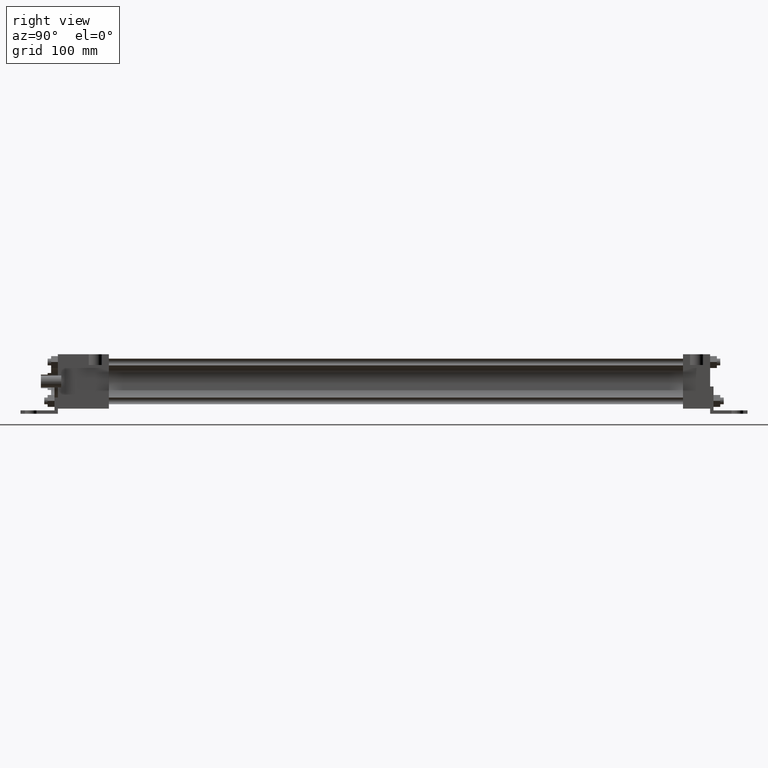
[diagram: clean part render]
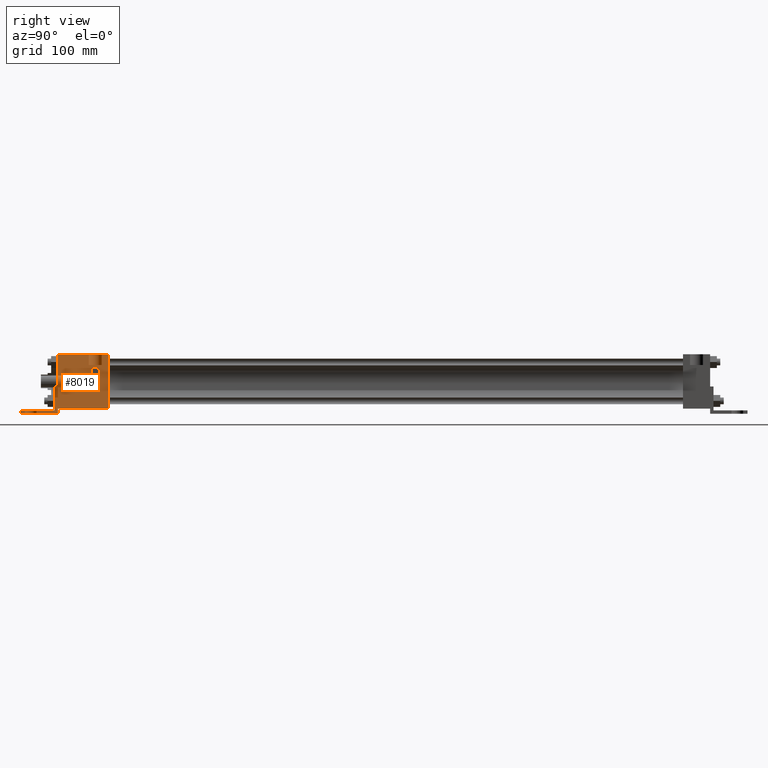
[diagram: same view with one face highlighted and labeled with its STEP entity id]
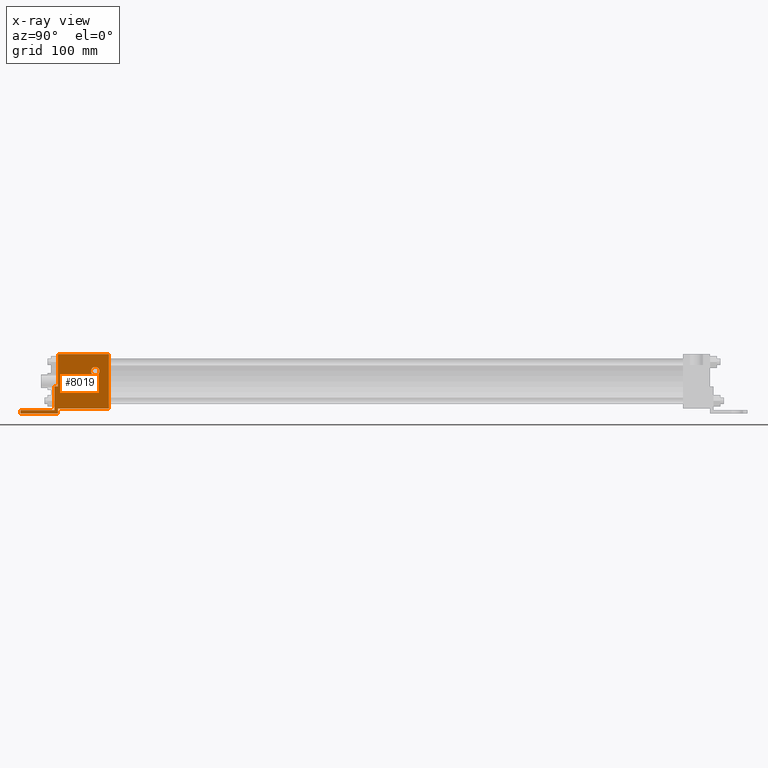
[diagram: x-ray of the same camera — body ghosted, the highlighted face saturated]
A machine part, right view. The second image highlights one B-rep face of the part: STEP entity #8019.
The next image is the same camera in x-ray: the body ghosted, the highlighted face saturated — about 0% of this face is hidden behind the body in this view.
In plain terms, the highlighted planar face has unit normal (1, 0, 0).
Its self-contained STEP definition (entity closure, byte-faithful):
#495=VERTEX_POINT('',#497);
#497=CARTESIAN_POINT('',(2.540000000E+001,6.350000000E+001,-2.540000000E+001));
#510=VERTEX_POINT('',#511);
#511=CARTESIAN_POINT('',(2.540000000E+001,6.350000000E+001,2.540000000E+001));
#512=EDGE_CURVE('',#495,#510,#513,.T.);
#513=LINE('',#514,#515);
#514=CARTESIAN_POINT('',(2.540000000E+001,6.350000000E+001,-2.540000000E+001));
#515=VECTOR('',#516,1.0E+000);
#516=DIRECTION('',(0.0E+000,0.0E+000,1.0E+000));
#572=VERTEX_POINT('',#574);
#574=CARTESIAN_POINT('',(2.540000000E+001,1.587500000E+001,-2.540000000E+001));
#580=EDGE_CURVE('',#495,#572,#581,.T.);
#581=LINE('',#582,#583);
#582=CARTESIAN_POINT('',(2.540000000E+001,6.350000000E+001,-2.540000000E+001));
#583=VECTOR('',#584,1.0E+000);
#584=DIRECTION('',(0.0E+000,-1.0E+000,0.0E+000));
#590=FACE_OUTER_BOUND('',#592,.T.);
#591=FACE_BOUND('',#593,.T.);
#592=EDGE_LOOP('',(#594));
#593=EDGE_LOOP('',(#603,#604,#605,#606,#607,#608,#609,#610,#611,#612));
#594=ORIENTED_EDGE('',*,*,#595,.T.);
#595=EDGE_CURVE('',#601,#601,#596,.T.);
#596=CIRCLE('',#597,3.968750000E+000);
#597=AXIS2_PLACEMENT_3D('',#598,#599,#600);
#598=CARTESIAN_POINT('',(2.540000000E+001,5.080000000E+001,9.525000000E+000));
#599=DIRECTION('',(-1.0E+000,0.0E+000,0.0E+000));
#600=DIRECTION('',(0.0E+000,0.0E+000,-1.0E+000));
#601=VERTEX_POINT('',#602);
#602=CARTESIAN_POINT('',(2.540000000E+001,5.080000000E+001,5.556250000E+000));
#603=ORIENTED_EDGE('',*,*,#613,.F.);
#604=ORIENTED_EDGE('',*,*,#622,.T.);
#605=ORIENTED_EDGE('',*,*,#629,.T.);
#606=ORIENTED_EDGE('',*,*,#636,.T.);
#607=ORIENTED_EDGE('',*,*,#643,.T.);
#608=ORIENTED_EDGE('',*,*,#650,.T.);
#609=ORIENTED_EDGE('',*,*,#657,.T.);
#610=ORIENTED_EDGE('',*,*,#580,.F.);
#611=ORIENTED_EDGE('',*,*,#512,.T.);
#612=ORIENTED_EDGE('',*,*,#662,.T.);
#613=EDGE_CURVE('',#618,#619,#614,.T.);
#614=LINE('',#615,#616);
#615=CARTESIAN_POINT('',(2.540000000E+001,1.587500000E+001,-2.540000000E+001));
#616=VECTOR('',#617,1.0E+000);
#617=DIRECTION('',(0.0E+000,0.0E+000,1.0E+000));
#618=VERTEX_POINT('',#620);
#619=VERTEX_POINT('',#621);
#620=CARTESIAN_POINT('',(2.540000000E+001,1.587500000E+001,-4.762500000E+000));
#621=CARTESIAN_POINT('',(2.540000000E+001,1.587500000E+001,2.540000000E+001));
#622=EDGE_CURVE('',#618,#627,#623,.T.);
#623=LINE('',#624,#625);
#624=CARTESIAN_POINT('',(2.540000000E+001,1.587500000E+001,-4.762500000E+000));
#625=VECTOR('',#626,1.0E+000);
#626=DIRECTION('',(0.0E+000,-1.0E+000,0.0E+000));
#627=VERTEX_POINT('',#628);
#628=CARTESIAN_POINT('',(2.540000000E+001,1.270000000E+001,-4.762500000E+000));
#629=EDGE_CURVE('',#627,#634,#630,.T.);
#630=LINE('',#631,#632);
#631=CARTESIAN_POINT('',(2.540000000E+001,1.270000000E+001,-4.762500000E+000));
#632=VECTOR('',#633,1.0E+000);
#633=DIRECTION('',(0.0E+000,0.0E+000,-1.0E+000));
#634=VERTEX_POINT('',#635);
#635=CARTESIAN_POINT('',(2.540000000E+001,1.270000000E+001,-2.698750000E+001));
#636=EDGE_CURVE('',#634,#641,#637,.T.);
#637=LINE('',#638,#639);
#638=CARTESIAN_POINT('',(2.540000000E+001,1.270000000E+001,-2.698750000E+001));
#639=VECTOR('',#640,1.0E+000);
#640=DIRECTION('',(0.0E+000,-1.0E+000,0.0E+000));
#641=VERTEX_POINT('',#642);
#642=CARTESIAN_POINT('',(2.540000000E+001,-1.905000000E+001,-2.698750000E+001));
#643=EDGE_CURVE('',#641,#648,#644,.T.);
#644=LINE('',#645,#646);
#645=CARTESIAN_POINT('',(2.540000000E+001,-1.905000000E+001,-2.698750000E+001));
#646=VECTOR('',#647,1.0E+000);
#647=DIRECTION('',(0.0E+000,0.0E+000,-1.0E+000));
#648=VERTEX_POINT('',#649);
#649=CARTESIAN_POINT('',(2.540000000E+001,-1.905000000E+001,-3.016250000E+001));
#650=EDGE_CURVE('',#648,#655,#651,.T.);
#651=LINE('',#652,#653);
#652=CARTESIAN_POINT('',(2.540000000E+001,-1.905000000E+001,-3.016250000E+001));
#653=VECTOR('',#654,1.0E+000);
#654=DIRECTION('',(0.0E+000,1.0E+000,0.0E+000));
#655=VERTEX_POINT('',#656);
#656=CARTESIAN_POINT('',(2.540000000E+001,1.587500000E+001,-3.016250000E+001));
#657=EDGE_CURVE('',#655,#572,#658,.T.);
#658=LINE('',#659,#660);
#659=CARTESIAN_POINT('',(2.540000000E+001,1.587500000E+001,-3.016250000E+001));
#660=VECTOR('',#661,1.0E+000);
#661=DIRECTION('',(0.0E+000,0.0E+000,1.0E+000));
#662=EDGE_CURVE('',#510,#619,#663,.T.);
#663=LINE('',#664,#665);
#664=CARTESIAN_POINT('',(2.540000000E+001,6.350000000E+001,2.540000000E+001));
#665=VECTOR('',#666,1.0E+000);
#666=DIRECTION('',(0.0E+000,-1.0E+000,0.0E+000));
#667=PLANE('',#668);
#668=AXIS2_PLACEMENT_3D('',#669,#670,#671);
#669=CARTESIAN_POINT('',(2.540000000E+001,6.350000000E+001,-2.540000000E+001));
#670=DIRECTION('',(1.0E+000,0.0E+000,0.0E+000));
#671=DIRECTION('',(0.0E+000,0.0E+000,-1.0E+000));
#8019=ADVANCED_FACE('',(#590,#591),#667,.T.);